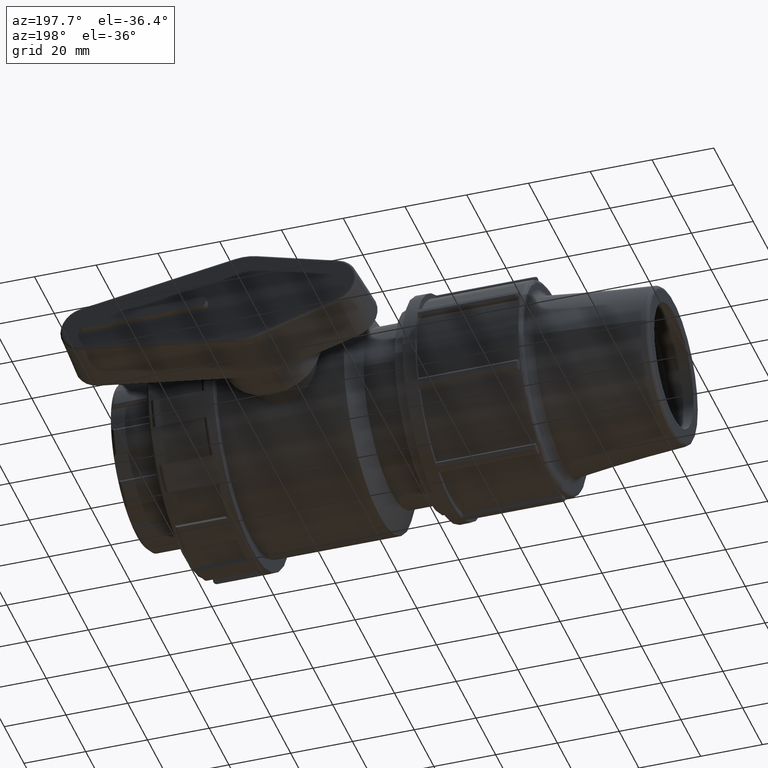
[diagram: clean part render]
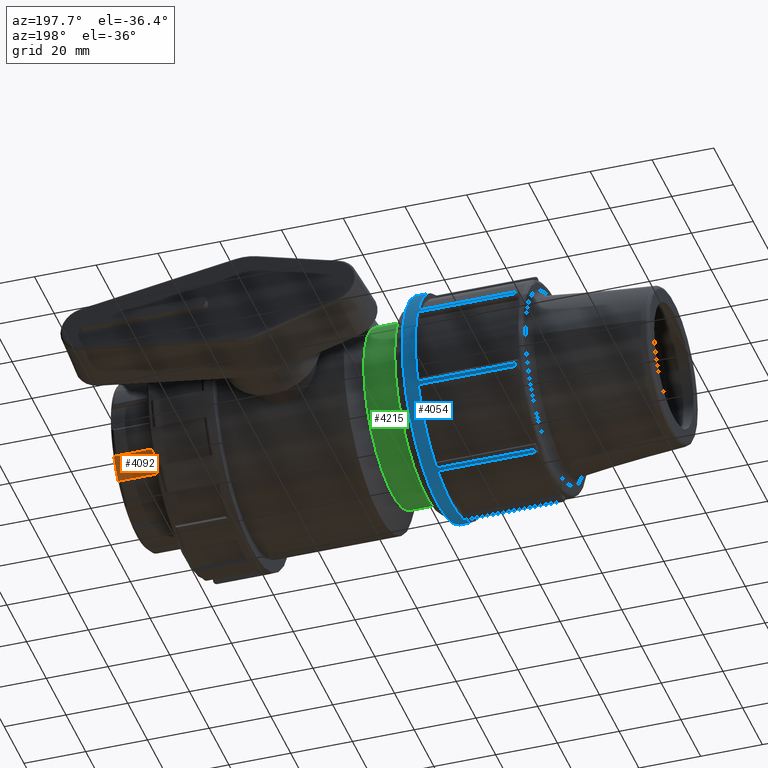
[diagram: same view with three faces highlighted in distinct colors, each labeled with its STEP entity id]
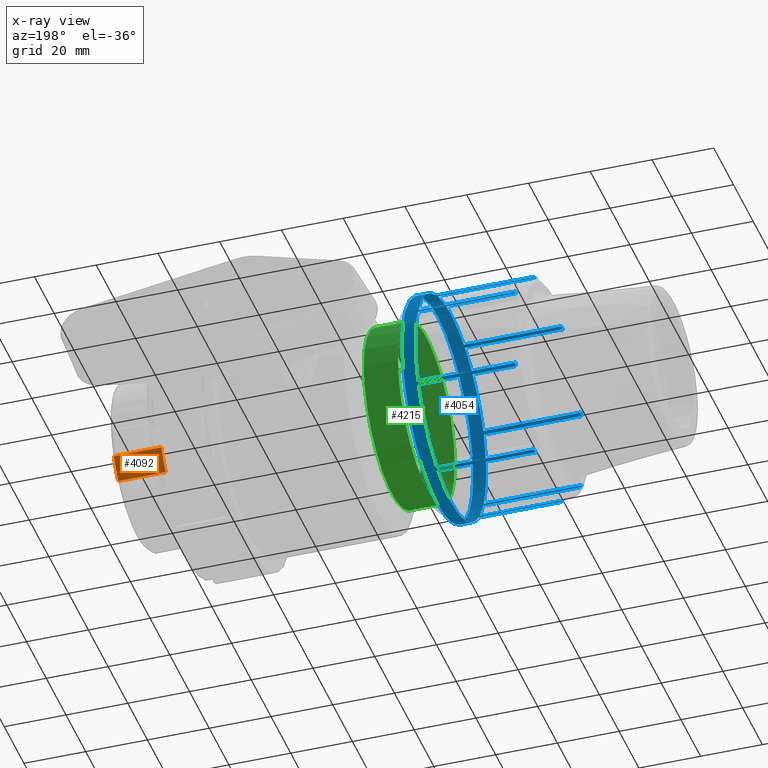
[diagram: x-ray of the same camera — body ghosted, the three highlighted faces saturated]
A machine part, auxiliary view with three faces highlighted in distinct colors.
The next image is the same camera in x-ray (body ghosted, the three faces saturated) — at least one of them is partly hidden behind the body in this view.
Their STEP definitions:

[orange] entity #4092 — the highlighted cylindrical surface (partial cylindrical patch) has radius 26.0978 mm, axis along (-1, 0, 0).
#472=FACE_OUTER_BOUND('',#728,.T.);
#728=EDGE_LOOP('',(#3206,#3207,#3208,#3209));
#983=LINE('',#7457,#1211);
#985=LINE('',#7477,#1213);
#1211=VECTOR('',#5233,15.4);
#1213=VECTOR('',#5239,15.4);
#1476=CIRCLE('',#4461,26.09784);
#1477=CIRCLE('',#4462,26.09784);
#1811=VERTEX_POINT('',#7438);
#1813=VERTEX_POINT('',#7455);
#1814=VERTEX_POINT('',#7459);
#1817=VERTEX_POINT('',#7464);
#2315=EDGE_CURVE('',#1811,#1813,#983,.T.);
#2319=EDGE_CURVE('',#1817,#1814,#985,.T.);
#2339=EDGE_CURVE('',#1817,#1811,#1476,.T.);
#2340=EDGE_CURVE('',#1813,#1814,#1477,.T.);
#3206=ORIENTED_EDGE('',*,*,#2339,.T.);
#3207=ORIENTED_EDGE('',*,*,#2315,.T.);
#3208=ORIENTED_EDGE('',*,*,#2340,.T.);
#3209=ORIENTED_EDGE('',*,*,#2319,.F.);
#3947=CYLINDRICAL_SURFACE('',#4460,26.09784);
#4092=ADVANCED_FACE('',(#472),#3947,.T.);
#4460=AXIS2_PLACEMENT_3D('',#7508,#5295,#5296);
#4461=AXIS2_PLACEMENT_3D('',#7509,#5297,#5298);
#4462=AXIS2_PLACEMENT_3D('',#7510,#5299,#5300);
#5233=DIRECTION('',(-1.,0.,0.));
#5239=DIRECTION('',(-1.,0.,0.));
#5295=DIRECTION('center_axis',(-1.,0.,0.));
#5296=DIRECTION('ref_axis',(0.,0.587785252292473,0.809016994374947));
#5297=DIRECTION('center_axis',(-1.,0.,0.));
#5298=DIRECTION('ref_axis',(0.,-1.,0.));
#5299=DIRECTION('center_axis',(1.,0.,0.));
#5300=DIRECTION('ref_axis',(0.,0.587785252292473,0.809016994374947));
#7438=CARTESIAN_POINT('',(58.,18.5875600910584,-18.3193848839663));
#7455=CARTESIAN_POINT('',(42.6,18.5875600910584,-18.3193848839663));
#7457=CARTESIAN_POINT('',(58.,18.5875600910584,-18.3193848839663));
#7459=CARTESIAN_POINT('',(42.6,23.1666423205177,-12.0168188909877));
#7464=CARTESIAN_POINT('',(58.,23.1666423205177,-12.0168188909877));
#7477=CARTESIAN_POINT('',(58.,23.1666423205177,-12.0168188909877));
#7508=CARTESIAN_POINT('Origin',(58.,0.,0.));
#7509=CARTESIAN_POINT('Origin',(58.,0.,0.));
#7510=CARTESIAN_POINT('Origin',(42.6,0.,0.));

[blue] entity #4054 — the highlighted cylindrical surface (bore or boss wall) has radius 36 mm, axis along (-1, 0, 0).
#40=FACE_BOUND('',#689,.T.);
#434=FACE_OUTER_BOUND('',#688,.T.);
#688=EDGE_LOOP('',(#3027,#3028,#3029,#3030,#3031,#3032,#3033,#3034,#3035,
#3036,#3037,#3038,#3039,#3040,#3041,#3042,#3043,#3044,#3045,#3046,#3047,
#3048,#3049,#3050,#3051,#3052,#3053,#3054,#3055,#3056,#3057,#3058));
#689=EDGE_LOOP('',(#3059));
#886=LINE('',#5956,#1114);
#890=LINE('',#6075,#1118);
#892=LINE('',#6105,#1120);
#896=LINE('',#6206,#1124);
#898=LINE('',#6236,#1126);
#902=LINE('',#6337,#1130);
#904=LINE('',#6367,#1132);
#908=LINE('',#6468,#1136);
#910=LINE('',#6498,#1138);
#914=LINE('',#6599,#1142);
#916=LINE('',#6629,#1144);
#920=LINE('',#6730,#1148);
#922=LINE('',#6760,#1150);
#926=LINE('',#6861,#1154);
#944=LINE('',#6975,#1172);
#947=LINE('',#7048,#1175);
#1114=VECTOR('',#4730,31.6);
#1118=VECTOR('',#4744,31.6);
#1120=VECTOR('',#4760,31.6);
#1124=VECTOR('',#4774,31.6);
#1126=VECTOR('',#4790,31.6);
#1130=VECTOR('',#4804,31.6);
#1132=VECTOR('',#4820,31.6);
#1136=VECTOR('',#4834,31.6);
#1138=VECTOR('',#4850,31.6);
#1142=VECTOR('',#4864,31.6);
#1144=VECTOR('',#4880,31.6);
#1148=VECTOR('',#4894,31.6);
#1150=VECTOR('',#4910,31.6);
#1154=VECTOR('',#4924,31.6);
#1172=VECTOR('',#5024,31.6);
#1175=VECTOR('',#5037,31.6);
#1348=CIRCLE('',#4237,36.);
#1355=CIRCLE('',#4249,36.);
#1362=CIRCLE('',#4261,36.);
#1369=CIRCLE('',#4273,36.);
#1376=CIRCLE('',#4285,36.);
#1383=CIRCLE('',#4297,36.);
#1390=CIRCLE('',#4309,36.);
#1392=CIRCLE('',#4313,36.);
#1394=CIRCLE('',#4317,36.);
#1396=CIRCLE('',#4321,36.);
#1398=CIRCLE('',#4325,36.);
#1400=CIRCLE('',#4329,36.);
#1402=CIRCLE('',#4333,36.);
#1404=CIRCLE('',#4337,36.);
#1413=CIRCLE('',#4352,36.);
#1420=CIRCLE('',#4366,36.);
#1421=CIRCLE('',#4368,36.);
#1609=VERTEX_POINT('',#5953);
#1610=VERTEX_POINT('',#5955);
#1620=VERTEX_POINT('',#6065);
#1622=VERTEX_POINT('',#6073);
#1625=VERTEX_POINT('',#6095);
#1627=VERTEX_POINT('',#6104);
#1635=VERTEX_POINT('',#6196);
#1637=VERTEX_POINT('',#6204);
#1640=VERTEX_POINT('',#6226);
#1642=VERTEX_POINT('',#6235);
#1650=VERTEX_POINT('',#6327);
#1652=VERTEX_POINT('',#6335);
#1655=VERTEX_POINT('',#6357);
#1657=VERTEX_POINT('',#6366);
#1665=VERTEX_POINT('',#6458);
#1667=VERTEX_POINT('',#6466);
#1670=VERTEX_POINT('',#6488);
#1672=VERTEX_POINT('',#6497);
#1680=VERTEX_POINT('',#6589);
#1682=VERTEX_POINT('',#6597);
#1685=VERTEX_POINT('',#6619);
#1687=VERTEX_POINT('',#6628);
#1695=VERTEX_POINT('',#6720);
#1697=VERTEX_POINT('',#6728);
#1700=VERTEX_POINT('',#6750);
#1702=VERTEX_POINT('',#6759);
#1710=VERTEX_POINT('',#6851);
#1712=VERTEX_POINT('',#6859);
#1715=VERTEX_POINT('',#6881);
#1731=VERTEX_POINT('',#6974);
#1734=VERTEX_POINT('',#7038);
#1736=VERTEX_POINT('',#7046);
#1743=VERTEX_POINT('',#7074);
#2022=EDGE_CURVE('',#1609,#1610,#886,.T.);
#2037=EDGE_CURVE('',#1622,#1620,#890,.T.);
#2042=EDGE_CURVE('',#1620,#1625,#1348,.T.);
#2045=EDGE_CURVE('',#1625,#1627,#892,.T.);
#2058=EDGE_CURVE('',#1637,#1635,#896,.T.);
#2063=EDGE_CURVE('',#1635,#1640,#1355,.T.);
#2066=EDGE_CURVE('',#1640,#1642,#898,.T.);
#2079=EDGE_CURVE('',#1652,#1650,#902,.T.);
#2084=EDGE_CURVE('',#1650,#1655,#1362,.T.);
#2087=EDGE_CURVE('',#1655,#1657,#904,.T.);
#2100=EDGE_CURVE('',#1667,#1665,#908,.T.);
#2105=EDGE_CURVE('',#1665,#1670,#1369,.T.);
#2108=EDGE_CURVE('',#1670,#1672,#910,.T.);
#2121=EDGE_CURVE('',#1682,#1680,#914,.T.);
#2126=EDGE_CURVE('',#1680,#1685,#1376,.T.);
#2129=EDGE_CURVE('',#1685,#1687,#916,.T.);
#2142=EDGE_CURVE('',#1697,#1695,#920,.T.);
#2147=EDGE_CURVE('',#1695,#1700,#1383,.T.);
#2150=EDGE_CURVE('',#1700,#1702,#922,.T.);
#2163=EDGE_CURVE('',#1712,#1710,#926,.T.);
#2168=EDGE_CURVE('',#1710,#1715,#1390,.T.);
#2173=EDGE_CURVE('',#1610,#1622,#1392,.T.);
#2177=EDGE_CURVE('',#1627,#1637,#1394,.T.);
#2181=EDGE_CURVE('',#1642,#1652,#1396,.T.);
#2185=EDGE_CURVE('',#1657,#1667,#1398,.T.);
#2189=EDGE_CURVE('',#1672,#1682,#1400,.T.);
#2193=EDGE_CURVE('',#1687,#1697,#1402,.T.);
#2197=EDGE_CURVE('',#1702,#1712,#1404,.T.);
#2208=EDGE_CURVE('',#1715,#1731,#944,.T.);
#2217=EDGE_CURVE('',#1736,#1734,#947,.T.);
#2219=EDGE_CURVE('',#1734,#1609,#1413,.T.);
#2227=EDGE_CURVE('',#1731,#1736,#1420,.T.);
#2228=EDGE_CURVE('',#1743,#1743,#1421,.T.);
#3027=ORIENTED_EDGE('',*,*,#2022,.F.);
#3028=ORIENTED_EDGE('',*,*,#2219,.F.);
#3029=ORIENTED_EDGE('',*,*,#2217,.F.);
#3030=ORIENTED_EDGE('',*,*,#2227,.F.);
#3031=ORIENTED_EDGE('',*,*,#2208,.F.);
#3032=ORIENTED_EDGE('',*,*,#2168,.F.);
#3033=ORIENTED_EDGE('',*,*,#2163,.F.);
#3034=ORIENTED_EDGE('',*,*,#2197,.F.);
#3035=ORIENTED_EDGE('',*,*,#2150,.F.);
#3036=ORIENTED_EDGE('',*,*,#2147,.F.);
#3037=ORIENTED_EDGE('',*,*,#2142,.F.);
#3038=ORIENTED_EDGE('',*,*,#2193,.F.);
#3039=ORIENTED_EDGE('',*,*,#2129,.F.);
#3040=ORIENTED_EDGE('',*,*,#2126,.F.);
#3041=ORIENTED_EDGE('',*,*,#2121,.F.);
#3042=ORIENTED_EDGE('',*,*,#2189,.F.);
#3043=ORIENTED_EDGE('',*,*,#2108,.F.);
#3044=ORIENTED_EDGE('',*,*,#2105,.F.);
#3045=ORIENTED_EDGE('',*,*,#2100,.F.);
#3046=ORIENTED_EDGE('',*,*,#2185,.F.);
#3047=ORIENTED_EDGE('',*,*,#2087,.F.);
#3048=ORIENTED_EDGE('',*,*,#2084,.F.);
#3049=ORIENTED_EDGE('',*,*,#2079,.F.);
#3050=ORIENTED_EDGE('',*,*,#2181,.F.);
#3051=ORIENTED_EDGE('',*,*,#2066,.F.);
#3052=ORIENTED_EDGE('',*,*,#2063,.F.);
#3053=ORIENTED_EDGE('',*,*,#2058,.F.);
#3054=ORIENTED_EDGE('',*,*,#2177,.F.);
#3055=ORIENTED_EDGE('',*,*,#2045,.F.);
#3056=ORIENTED_EDGE('',*,*,#2042,.F.);
#3057=ORIENTED_EDGE('',*,*,#2037,.F.);
#3058=ORIENTED_EDGE('',*,*,#2173,.F.);
#3059=ORIENTED_EDGE('',*,*,#2228,.T.);
#3919=CYLINDRICAL_SURFACE('',#4367,36.);
#4054=ADVANCED_FACE('',(#434,#40),#3919,.T.);
#4237=AXIS2_PLACEMENT_3D('',#6096,#4754,#4755);
#4249=AXIS2_PLACEMENT_3D('',#6227,#4784,#4785);
#4261=AXIS2_PLACEMENT_3D('',#6358,#4814,#4815);
#4273=AXIS2_PLACEMENT_3D('',#6489,#4844,#4845);
#4285=AXIS2_PLACEMENT_3D('',#6620,#4874,#4875);
#4297=AXIS2_PLACEMENT_3D('',#6751,#4904,#4905);
#4309=AXIS2_PLACEMENT_3D('',#6882,#4934,#4935);
#4313=AXIS2_PLACEMENT_3D('',#6893,#4944,#4945);
#4317=AXIS2_PLACEMENT_3D('',#6900,#4954,#4955);
#4321=AXIS2_PLACEMENT_3D('',#6907,#4964,#4965);
#4325=AXIS2_PLACEMENT_3D('',#6914,#4974,#4975);
#4329=AXIS2_PLACEMENT_3D('',#6921,#4984,#4985);
#4333=AXIS2_PLACEMENT_3D('',#6928,#4994,#4995);
#4337=AXIS2_PLACEMENT_3D('',#6935,#5004,#5005);
#4352=AXIS2_PLACEMENT_3D('',#7051,#5041,#5042);
#4366=AXIS2_PLACEMENT_3D('',#7072,#5070,#5071);
#4367=AXIS2_PLACEMENT_3D('',#7073,#5072,#5073);
#4368=AXIS2_PLACEMENT_3D('',#7075,#5074,#5075);
#4730=DIRECTION('',(1.,0.,0.));
#4744=DIRECTION('',(-1.,0.,0.));
#4754=DIRECTION('center_axis',(-1.,0.,0.));
#4755=DIRECTION('ref_axis',(0.,-1.,-1.83697019872103E-16));
#4760=DIRECTION('',(1.,0.,0.));
#4774=DIRECTION('',(-1.,0.,0.));
#4784=DIRECTION('center_axis',(-1.,0.,0.));
#4785=DIRECTION('ref_axis',(0.,-1.,-1.83697019872103E-16));
#4790=DIRECTION('',(1.,0.,0.));
#4804=DIRECTION('',(-1.,0.,0.));
#4814=DIRECTION('center_axis',(-1.,0.,0.));
#4815=DIRECTION('ref_axis',(0.,-1.,-1.83697019872103E-16));
#4820=DIRECTION('',(1.,0.,0.));
#4834=DIRECTION('',(-1.,0.,0.));
#4844=DIRECTION('center_axis',(-1.,0.,0.));
#4845=DIRECTION('ref_axis',(0.,-1.,-1.83697019872103E-16));
#4850=DIRECTION('',(1.,0.,0.));
#4864=DIRECTION('',(-1.,0.,0.));
#4874=DIRECTION('center_axis',(-1.,0.,0.));
#4875=DIRECTION('ref_axis',(0.,-1.,-1.83697019872103E-16));
#4880=DIRECTION('',(1.,0.,0.));
#4894=DIRECTION('',(-1.,0.,0.));
#4904=DIRECTION('center_axis',(-1.,0.,0.));
#4905=DIRECTION('ref_axis',(0.,-1.,-1.83697019872103E-16));
#4910=DIRECTION('',(1.,0.,0.));
#4924=DIRECTION('',(-1.,0.,0.));
#4934=DIRECTION('center_axis',(-1.,0.,0.));
#4935=DIRECTION('ref_axis',(0.,-1.,-1.83697019872103E-16));
#4944=DIRECTION('center_axis',(-1.,0.,0.));
#4945=DIRECTION('ref_axis',(0.,1.,0.));
#4954=DIRECTION('center_axis',(-1.,0.,0.));
#4955=DIRECTION('ref_axis',(0.,1.,0.));
#4964=DIRECTION('center_axis',(-1.,0.,0.));
#4965=DIRECTION('ref_axis',(0.,1.,0.));
#4974=DIRECTION('center_axis',(-1.,0.,0.));
#4975=DIRECTION('ref_axis',(0.,1.,0.));
#4984=DIRECTION('center_axis',(-1.,0.,0.));
#4985=DIRECTION('ref_axis',(0.,1.,0.));
#4994=DIRECTION('center_axis',(-1.,0.,0.));
#4995=DIRECTION('ref_axis',(0.,1.,0.));
#5004=DIRECTION('center_axis',(-1.,0.,0.));
#5005=DIRECTION('ref_axis',(0.,1.,0.));
#5024=DIRECTION('',(1.,0.,0.));
#5037=DIRECTION('',(-1.,0.,0.));
#5041=DIRECTION('center_axis',(-1.,0.,0.));
#5042=DIRECTION('ref_axis',(0.,-1.,-1.83697019872103E-16));
#5070=DIRECTION('center_axis',(-1.,0.,0.));
#5071=DIRECTION('ref_axis',(0.,1.,0.));
#5072=DIRECTION('center_axis',(-1.,0.,0.));
#5073=DIRECTION('ref_axis',(0.,1.,0.));
#5074=DIRECTION('center_axis',(-1.,0.,0.));
#5075=DIRECTION('ref_axis',(0.,0.,1.));
#5953=CARTESIAN_POINT('',(-75.35,33.0344217673753,-14.3082835621593));
#5955=CARTESIAN_POINT('',(-43.75,33.0344217673753,-14.3082835621593));
#5956=CARTESIAN_POINT('',(-58.625,33.0344217673753,-14.3082835621593));
#6065=CARTESIAN_POINT('',(-75.35,14.3082835621592,-33.0344217673754));
#6073=CARTESIAN_POINT('',(-43.75,14.3082835621592,-33.0344217673754));
#6075=CARTESIAN_POINT('',(-58.625,14.3082835621592,-33.0344217673754));
#6095=CARTESIAN_POINT('',(-75.35,13.2413793103448,-33.4763479782305));
#6096=CARTESIAN_POINT('Origin',(-75.35,0.,0.));
#6104=CARTESIAN_POINT('',(-43.75,13.2413793103448,-33.4763479782305));
#6105=CARTESIAN_POINT('',(-58.625,13.2413793103448,-33.4763479782305));
#6196=CARTESIAN_POINT('',(-75.35,-13.2413793103449,-33.4763479782304));
#6204=CARTESIAN_POINT('',(-43.75,-13.2413793103449,-33.4763479782304));
#6206=CARTESIAN_POINT('',(-58.625,-13.2413793103449,-33.4763479782304));
#6226=CARTESIAN_POINT('',(-75.35,-14.3082835621593,-33.0344217673753));
#6227=CARTESIAN_POINT('Origin',(-75.35,0.,0.));
#6235=CARTESIAN_POINT('',(-43.75,-14.3082835621593,-33.0344217673753));
#6236=CARTESIAN_POINT('',(-58.625,-14.3082835621593,-33.0344217673753));
#6327=CARTESIAN_POINT('',(-75.35,-33.0344217673754,-14.3082835621592));
#6335=CARTESIAN_POINT('',(-43.75,-33.0344217673754,-14.3082835621592));
#6337=CARTESIAN_POINT('',(-58.625,-33.0344217673754,-14.3082835621592));
#6357=CARTESIAN_POINT('',(-75.35,-33.4763479782305,-13.2413793103448));
#6358=CARTESIAN_POINT('Origin',(-75.35,0.,0.));
#6366=CARTESIAN_POINT('',(-43.75,-33.4763479782305,-13.2413793103448));
#6367=CARTESIAN_POINT('',(-58.625,-33.4763479782305,-13.2413793103448));
#6458=CARTESIAN_POINT('',(-75.35,-33.4763479782304,13.2413793103449));
#6466=CARTESIAN_POINT('',(-43.75,-33.4763479782304,13.2413793103449));
#6468=CARTESIAN_POINT('',(-58.625,-33.4763479782304,13.2413793103449));
#6488=CARTESIAN_POINT('',(-75.35,-33.0344217673753,14.3082835621593));
#6489=CARTESIAN_POINT('Origin',(-75.35,0.,0.));
#6497=CARTESIAN_POINT('',(-43.75,-33.0344217673753,14.3082835621593));
#6498=CARTESIAN_POINT('',(-58.625,-33.0344217673753,14.3082835621593));
#6589=CARTESIAN_POINT('',(-75.35,-14.3082835621592,33.0344217673754));
#6597=CARTESIAN_POINT('',(-43.75,-14.3082835621592,33.0344217673754));
#6599=CARTESIAN_POINT('',(-58.625,-14.3082835621592,33.0344217673754));
#6619=CARTESIAN_POINT('',(-75.35,-13.2413793103448,33.4763479782305));
#6620=CARTESIAN_POINT('Origin',(-75.35,0.,0.));
#6628=CARTESIAN_POINT('',(-43.75,-13.2413793103448,33.4763479782305));
#6629=CARTESIAN_POINT('',(-58.625,-13.2413793103448,33.4763479782305));
#6720=CARTESIAN_POINT('',(-75.35,13.2413793103449,33.4763479782304));
#6728=CARTESIAN_POINT('',(-43.75,13.2413793103449,33.4763479782304));
#6730=CARTESIAN_POINT('',(-58.625,13.2413793103449,33.4763479782304));
#6750=CARTESIAN_POINT('',(-75.35,14.3082835621593,33.0344217673753));
#6751=CARTESIAN_POINT('Origin',(-75.35,0.,0.));
#6759=CARTESIAN_POINT('',(-43.75,14.3082835621593,33.0344217673753));
#6760=CARTESIAN_POINT('',(-58.625,14.3082835621593,33.0344217673753));
#6851=CARTESIAN_POINT('',(-75.35,33.0344217673754,14.3082835621592));
#6859=CARTESIAN_POINT('',(-43.75,33.0344217673754,14.3082835621592));
#6861=CARTESIAN_POINT('',(-58.625,33.0344217673754,14.3082835621592));
#6881=CARTESIAN_POINT('',(-75.35,33.4763479782304,13.2413793103448));
#6882=CARTESIAN_POINT('Origin',(-75.35,0.,0.));
#6893=CARTESIAN_POINT('Origin',(-43.75,0.,0.));
#6900=CARTESIAN_POINT('Origin',(-43.75,0.,0.));
#6907=CARTESIAN_POINT('Origin',(-43.75,0.,0.));
#6914=CARTESIAN_POINT('Origin',(-43.75,0.,0.));
#6921=CARTESIAN_POINT('Origin',(-43.75,0.,0.));
#6928=CARTESIAN_POINT('Origin',(-43.75,0.,0.));
#6935=CARTESIAN_POINT('Origin',(-43.75,0.,0.));
#6974=CARTESIAN_POINT('',(-43.75,33.4763479782305,13.2413793103448));
#6975=CARTESIAN_POINT('',(-58.625,33.4763479782305,13.2413793103448));
#7038=CARTESIAN_POINT('',(-75.35,33.4763479782304,-13.2413793103449));
#7046=CARTESIAN_POINT('',(-43.75,33.4763479782304,-13.2413793103449));
#7048=CARTESIAN_POINT('',(-58.625,33.4763479782304,-13.2413793103449));
#7051=CARTESIAN_POINT('Origin',(-75.35,0.,0.));
#7072=CARTESIAN_POINT('Origin',(-43.75,0.,0.));
#7073=CARTESIAN_POINT('Origin',(-58.625,0.,0.));
#7074=CARTESIAN_POINT('',(-39.5,36.,0.));
#7075=CARTESIAN_POINT('Origin',(-39.5,0.,0.));

[green] entity #4215 — the highlighted cylindrical surface (bore or boss wall) has radius 28.8 mm, axis along (-1, 0, 0).
#59=FACE_BOUND('',#869,.T.);
#595=FACE_OUTER_BOUND('',#868,.T.);
#868=EDGE_LOOP('',(#3884));
#869=EDGE_LOOP('',(#3885));
#1600=CIRCLE('',#4707,28.8);
#1601=CIRCLE('',#4709,28.8);
#2013=VERTEX_POINT('',#8601);
#2014=VERTEX_POINT('',#8604);
#2640=EDGE_CURVE('',#2013,#2013,#1600,.T.);
#2641=EDGE_CURVE('',#2014,#2014,#1601,.T.);
#3884=ORIENTED_EDGE('',*,*,#2641,.F.);
#3885=ORIENTED_EDGE('',*,*,#2640,.T.);
#3972=CYLINDRICAL_SURFACE('',#4708,28.8);
#4215=ADVANCED_FACE('',(#595,#59),#3972,.T.);
#4707=AXIS2_PLACEMENT_3D('',#8602,#5916,#5917);
#4708=AXIS2_PLACEMENT_3D('',#8603,#5918,#5919);
#4709=AXIS2_PLACEMENT_3D('',#8605,#5920,#5921);
#5916=DIRECTION('center_axis',(-1.,0.,0.));
#5917=DIRECTION('ref_axis',(0.,0.,1.));
#5918=DIRECTION('center_axis',(-1.,0.,0.));
#5919=DIRECTION('ref_axis',(0.,1.,0.));
#5920=DIRECTION('center_axis',(-1.,0.,0.));
#5921=DIRECTION('ref_axis',(0.,0.,1.));
#8601=CARTESIAN_POINT('',(-24.7569219381653,28.8,0.));
#8602=CARTESIAN_POINT('Origin',(-24.7569219381653,0.,0.));
#8603=CARTESIAN_POINT('Origin',(-30.3284609690826,0.,0.));
#8604=CARTESIAN_POINT('',(-35.9,28.8,0.));
#8605=CARTESIAN_POINT('Origin',(-35.9,0.,0.));